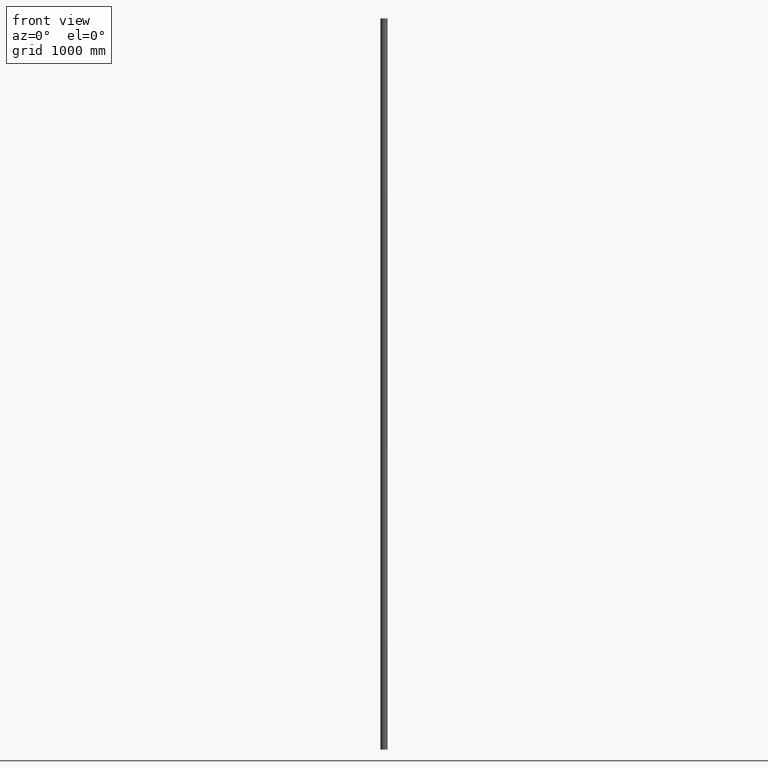
[diagram: clean part render]
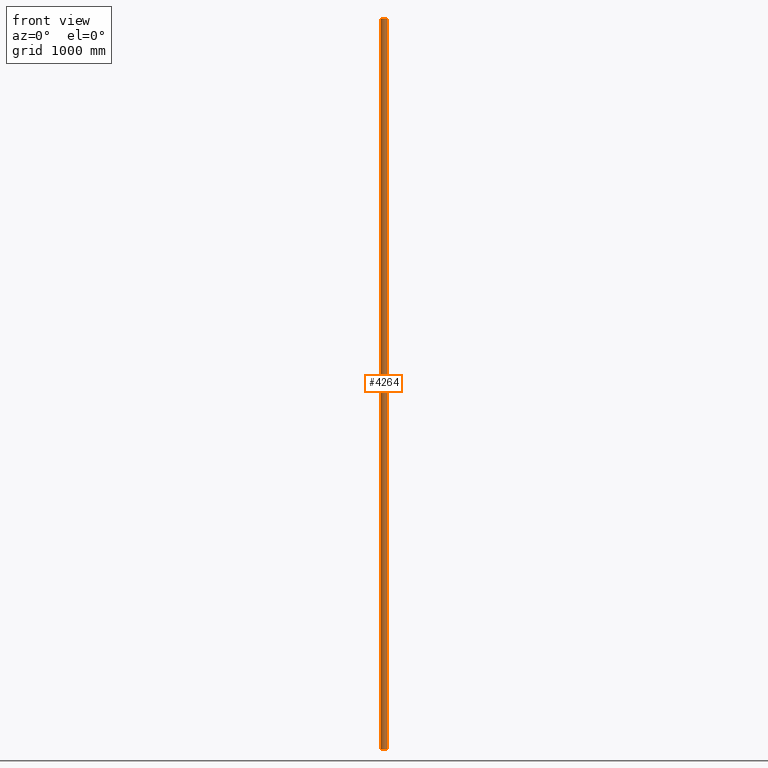
[diagram: same view with one face highlighted and labeled with its STEP entity id]
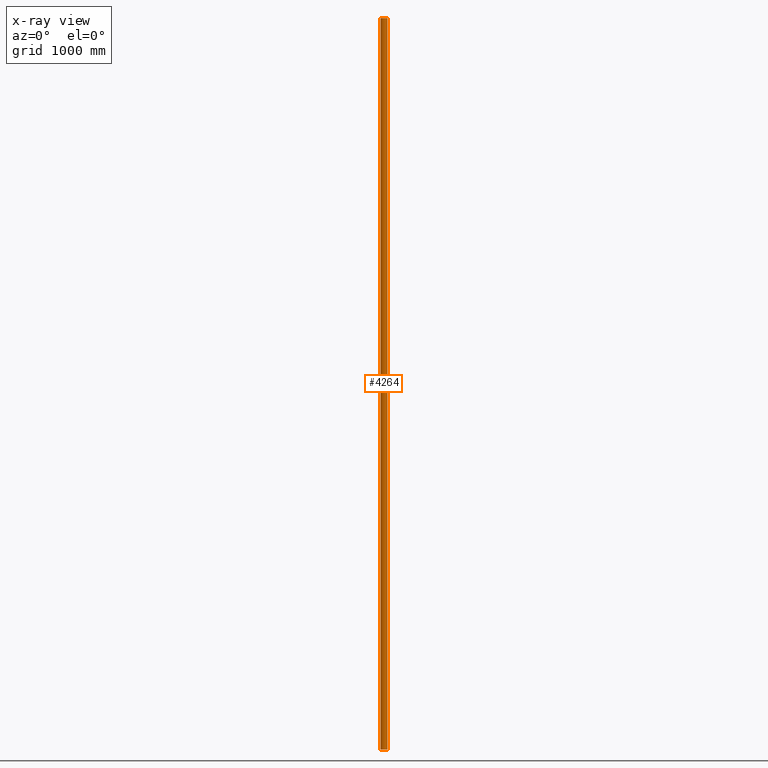
[diagram: x-ray of the same camera — body ghosted, the highlighted face saturated]
A machine part, front view. The second image highlights one B-rep face of the part: STEP entity #4264.
The next image is the same camera in x-ray: the body ghosted, the highlighted face saturated — about 0% of this face is hidden behind the body in this view.
In plain terms, the highlighted cylindrical surface (bore or boss wall) has radius 30.15 mm, axis along (-0, -0, -1).
Its self-contained STEP definition (entity closure, byte-faithful):
#54 = DIRECTION ( 'NONE',  ( 0.000000000000000000, 0.000000000000000000, 1.000000000000000000 ) ) ;
#139 = CARTESIAN_POINT ( 'NONE',  ( 0.000000000000000000, 0.000000000000000000, -3000.000000000000000 ) ) ;
#901 = EDGE_LOOP ( 'NONE', ( #2358 ) ) ;
#1017 = DIRECTION ( 'NONE',  ( 1.000000000000000000, 0.000000000000000000, 0.000000000000000000 ) ) ;
#1251 = CARTESIAN_POINT ( 'NONE',  ( 30.14999999999999858, 0.000000000000000000, -3000.000000000000000 ) ) ;
#1538 = EDGE_CURVE ( 'NONE', #8823, #8823, #10422, .T. ) ;
#1587 = DIRECTION ( 'NONE',  ( 0.000000000000000000, 0.000000000000000000, 1.000000000000000000 ) ) ;
#2358 = ORIENTED_EDGE ( 'NONE', *, *, #5853, .F. ) ;
#2788 = AXIS2_PLACEMENT_3D ( 'NONE', #11566, #1587, #11411 ) ;
#3216 = CARTESIAN_POINT ( 'NONE',  ( 0.000000000000000000, 0.000000000000000000, 3000.000000000000000 ) ) ;
#4034 = EDGE_LOOP ( 'NONE', ( #8407 ) ) ;
#4264 = ADVANCED_FACE ( 'NONE', ( #9318, #8837 ), #9928, .T. ) ;
#4332 = VERTEX_POINT ( 'NONE', #11319 ) ;
#5853 = EDGE_CURVE ( 'NONE', #4332, #4332, #8658, .T. ) ;
#7180 = DIRECTION ( 'NONE',  ( -1.000000000000000000, 0.000000000000000000, 0.000000000000000000 ) ) ;
#8339 = AXIS2_PLACEMENT_3D ( 'NONE', #139, #54, #1017 ) ;
#8407 = ORIENTED_EDGE ( 'NONE', *, *, #1538, .T. ) ;
#8658 = CIRCLE ( 'NONE', #2788, 30.14999999999999858 ) ;
#8823 = VERTEX_POINT ( 'NONE', #1251 ) ;
#8837 = FACE_OUTER_BOUND ( 'NONE', #4034, .T. ) ;
#9318 = FACE_OUTER_BOUND ( 'NONE', #901, .T. ) ;
#9928 = CYLINDRICAL_SURFACE ( 'NONE', #9944, 30.14999999999999858 ) ;
#9944 = AXIS2_PLACEMENT_3D ( 'NONE', #3216, #11206, #7180 ) ;
#10422 = CIRCLE ( 'NONE', #8339, 30.14999999999999858 ) ;
#11206 = DIRECTION ( 'NONE',  ( -0.000000000000000000, -0.000000000000000000, -1.000000000000000000 ) ) ;
#11319 = CARTESIAN_POINT ( 'NONE',  ( 30.14999999999999858, 0.000000000000000000, 3000.000000000000000 ) ) ;
#11411 = DIRECTION ( 'NONE',  ( 1.000000000000000000, 0.000000000000000000, 0.000000000000000000 ) ) ;
#11566 = CARTESIAN_POINT ( 'NONE',  ( 0.000000000000000000, 0.000000000000000000, 3000.000000000000000 ) ) ;